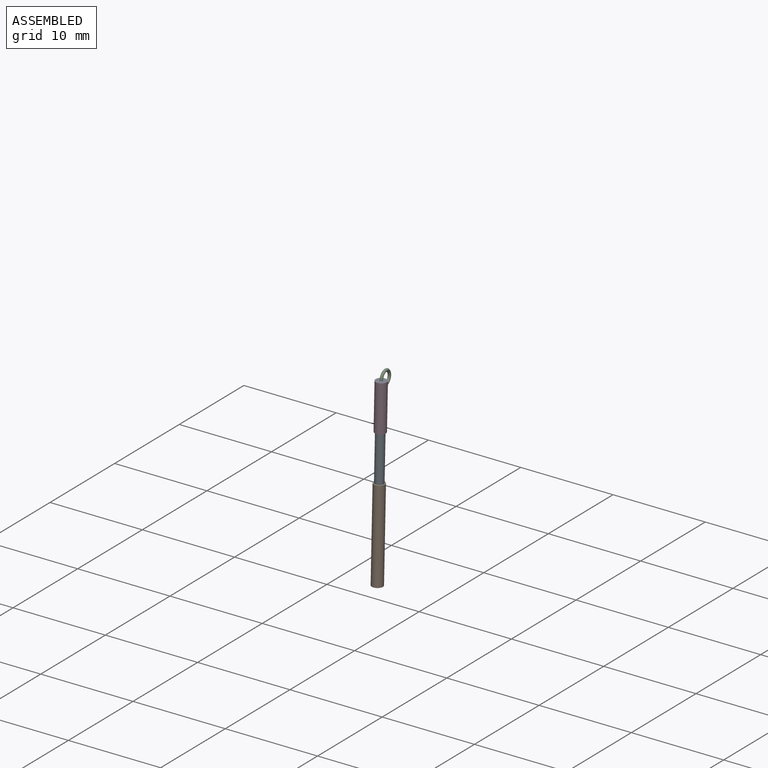
[diagram: assembled view]
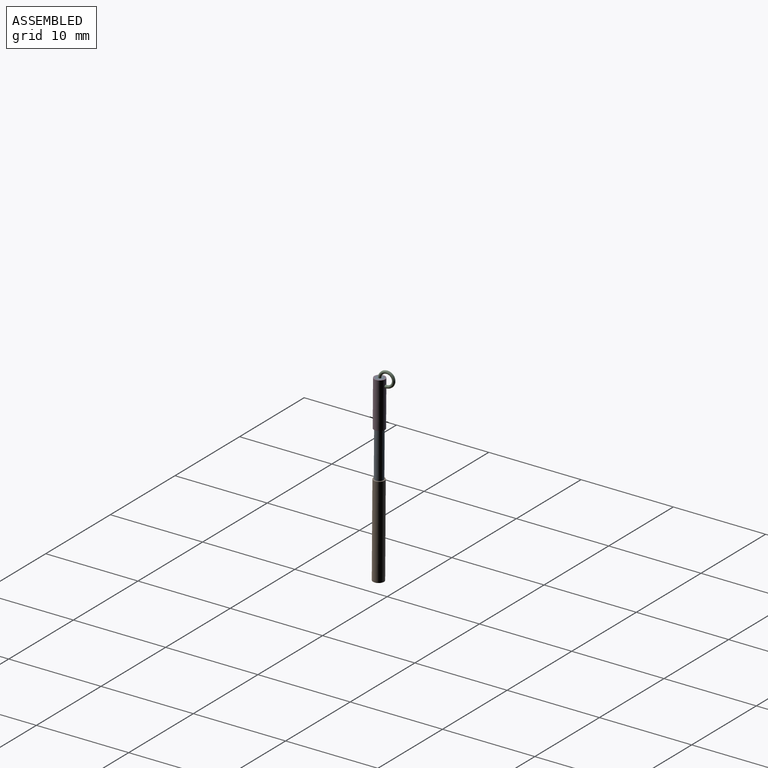
[diagram: assembled view, second angle]
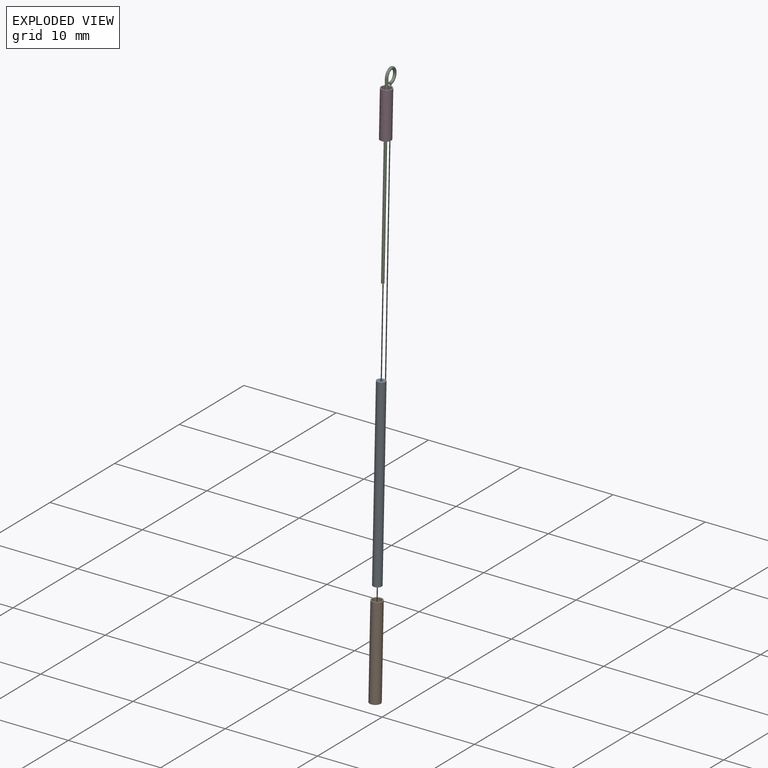
[diagram: exploded view]
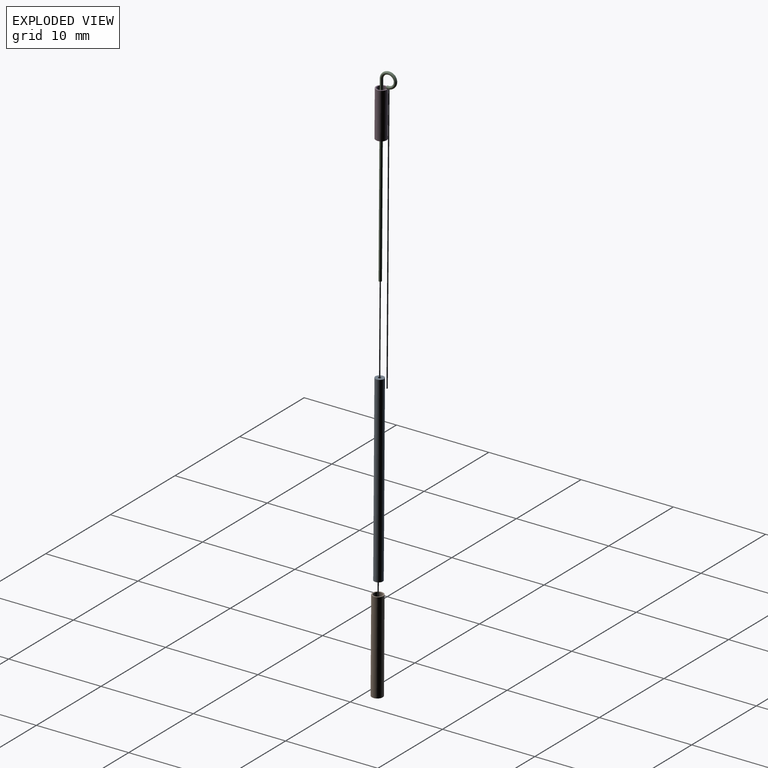
[diagram: exploded view, second angle]
ASSEMBLY  parts=4 mates=3
PART A: 4 faces, bbox 0.9x0.9x20 mm
  f0: cylinder r=0.16mm len=20mm, axis (0,0,-1), area 19.5mm2, adj f2,f3
  f1: cylinder r=0.47mm len=20mm, axis (0,0,-1), area 59.1mm2, adj f2,f3
  f2: plane 0.94x0.94mm, normal (0,0,1), area 0.6mm2, adj f0,f1
  f3: plane 0.94x0.94mm, normal (0,0,-1), area 0.6mm2, adj f0,f1
PART B: 4 faces, bbox 1.2x1.2x10 mm
  f0: cylinder r=0.47mm len=10mm, axis (0,0,-1), area 29.6mm2, adj f2,f3
  f1: cylinder r=0.6mm len=10mm, axis (0,0,-1), area 37.4mm2, adj f2,f3
  f2: plane 1.19x1.19mm, normal (0,0,1), area 0.4mm2, adj f0,f1
  f3: plane 1.19x1.19mm, normal (0,0,-1), area 0.4mm2, adj f0,f1
PART C: 5 faces, bbox 0.3x1.9x20.9 mm
  f0: cylinder r=0.15mm len=20mm, axis (0,0,-1), area 19.5mm2, adj f1,f2
  f1: plane 0.31x0.31mm, normal (0,0,-1), area 0.1mm2, adj f0
  f2: torus R=0.72mm, axis (1,0,0), area 3.3mm2, adj f0,f3
  f3: cylinder r=0.15mm len=0.31mm, axis (0,1,0), area 0.1mm2, adj f2,f4
  f4: plane 0.31x0.31mm, normal (0,-1,0), area 0.1mm2, adj f3
PART D: 4 faces, bbox 1.2x1.2x5 mm
  f0: cylinder r=0.47mm len=5mm, axis (0,0,-1), area 14.8mm2, adj f2,f3
  f1: cylinder r=0.6mm len=5mm, axis (0,0,-1), area 18.7mm2, adj f2,f3
  f2: plane 1.19x1.19mm, normal (0,0,1), area 0.4mm2, adj f0,f1
  f3: plane 1.19x1.19mm, normal (0,0,-1), area 0.4mm2, adj f0,f1
PLACE A rot(axis=(-0.16,0.14,0.98),5deg) t=(8.21,-8.19,0.47)mm
PLACE B rot(axis=(-0.16,0.14,0.98),5deg) t=(8.21,-8.19,0.47)mm
PLACE C rot(axis=(-0.16,0.14,0.98),5deg) t=(8.21,-8.19,0.47)mm
PLACE D rot(axis=(-0.16,0.14,0.98),5deg) t=(8.37,-7.97,15.47)mm
MATE fastened C.f0 <-> A.f0  axis (-0.01,-0.01,-1) through (8.21,-8.19,0.47)mm
MATE fastened A.f0 <-> D.f0  axis (-0.01,-0.01,-1) through (8.43,-7.9,20.47)mm
MATE fastened A.f0 <-> B.f0  axis (-0.01,-0.01,-1) through (8.21,-8.19,0.47)mm
